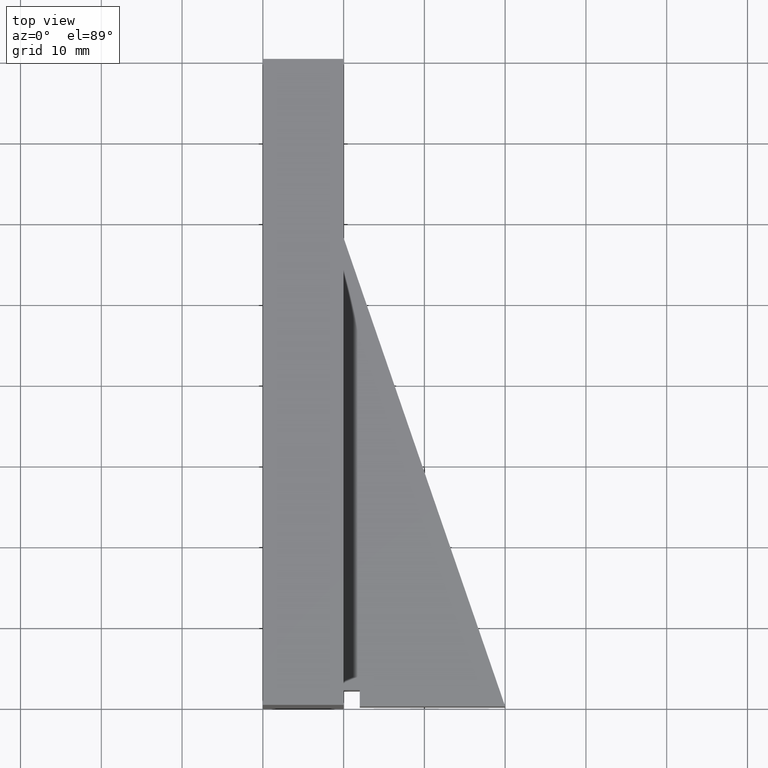
[diagram: clean part render]
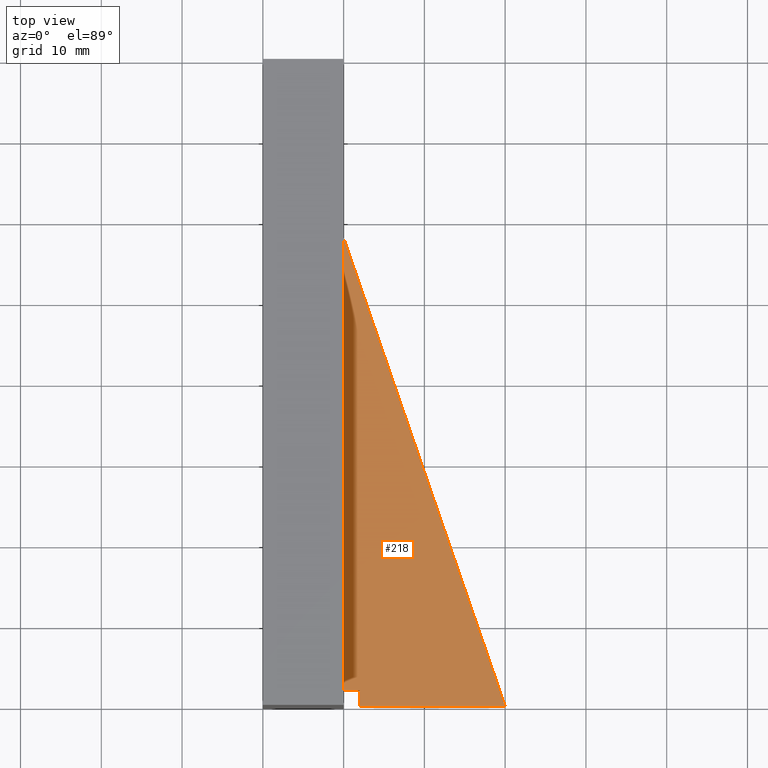
[diagram: same view with one face highlighted and labeled with its STEP entity id]
A machine part, top view. The second image highlights one B-rep face of the part: STEP entity #218.
In plain terms, the highlighted planar face has unit normal (0, 0, 1).
Its self-contained STEP definition (entity closure, byte-faithful):
#28=FACE_OUTER_BOUND('',#41,.T.);
#41=EDGE_LOOP('',(#190,#191,#192,#193,#194));
#48=LINE('',#323,#75);
#62=LINE('',#353,#89);
#65=LINE('',#357,#92);
#66=LINE('',#360,#93);
#68=LINE('',#363,#95);
#75=VECTOR('',#264,10.);
#89=VECTOR('',#292,10.);
#92=VECTOR('',#297,10.);
#93=VECTOR('',#300,10.);
#95=VECTOR('',#304,10.);
#102=VERTEX_POINT('',#320);
#103=VERTEX_POINT('',#322);
#111=VERTEX_POINT('',#351);
#112=VERTEX_POINT('',#352);
#113=VERTEX_POINT('',#359);
#120=EDGE_CURVE('',#102,#103,#48,.T.);
#134=EDGE_CURVE('',#111,#112,#62,.T.);
#137=EDGE_CURVE('',#112,#102,#65,.T.);
#138=EDGE_CURVE('',#103,#113,#66,.T.);
#140=EDGE_CURVE('',#113,#111,#68,.T.);
#190=ORIENTED_EDGE('',*,*,#134,.F.);
#191=ORIENTED_EDGE('',*,*,#140,.F.);
#192=ORIENTED_EDGE('',*,*,#138,.F.);
#193=ORIENTED_EDGE('',*,*,#120,.F.);
#194=ORIENTED_EDGE('',*,*,#137,.F.);
#206=PLANE('',#253);
#218=ADVANCED_FACE('',(#28),#206,.T.);
#253=AXIS2_PLACEMENT_3D('',#364,#305,#306);
#264=DIRECTION('',(-2.37904933848248E-16,1.,0.));
#292=DIRECTION('',(1.11022302462516E-15,1.,0.));
#297=DIRECTION('',(-1.,-2.77555756156289E-16,0.));
#300=DIRECTION('',(0.325990683319404,-0.945372981626272,0.));
#304=DIRECTION('',(-1.,-3.46944695195361E-17,0.));
#305=DIRECTION('center_axis',(0.,0.,1.));
#306=DIRECTION('ref_axis',(1.,0.,0.));
#320=CARTESIAN_POINT('',(-20.,2.,5.));
#322=CARTESIAN_POINT('',(-20.,58.,5.));
#323=CARTESIAN_POINT('',(-20.,2.,5.));
#351=CARTESIAN_POINT('',(-18.,-6.24500451351651E-16,5.));
#352=CARTESIAN_POINT('',(-18.,2.,5.));
#353=CARTESIAN_POINT('',(-18.,-5.55111512312578E-16,5.));
#357=CARTESIAN_POINT('',(-18.,2.,5.));
#359=CARTESIAN_POINT('',(0.,0.,5.));
#360=CARTESIAN_POINT('',(-20.,58.,5.));
#363=CARTESIAN_POINT('',(0.,0.,5.));
#364=CARTESIAN_POINT('Origin',(-14.1334339474095,24.8665660525905,5.));